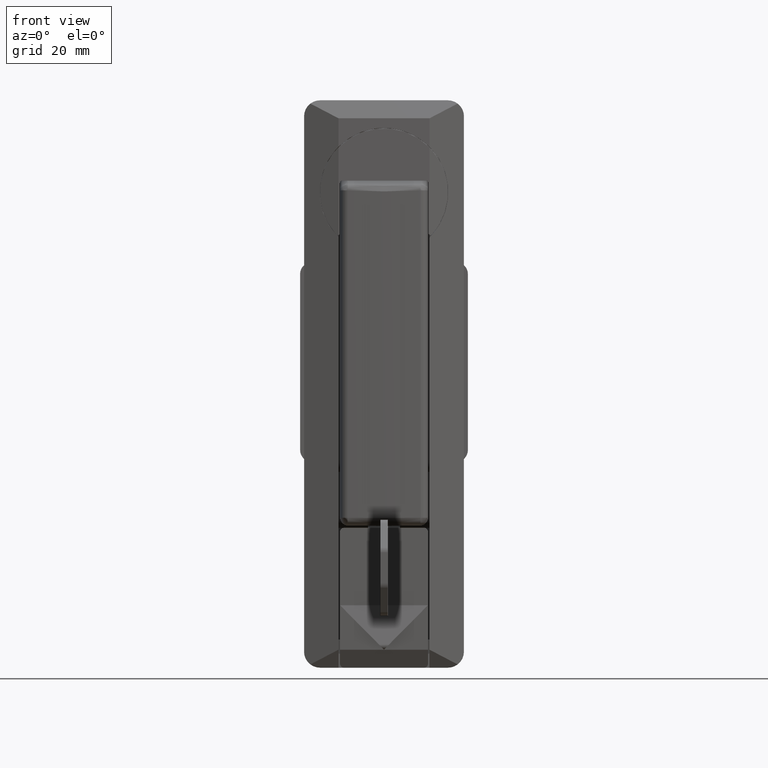
[diagram: clean part render]
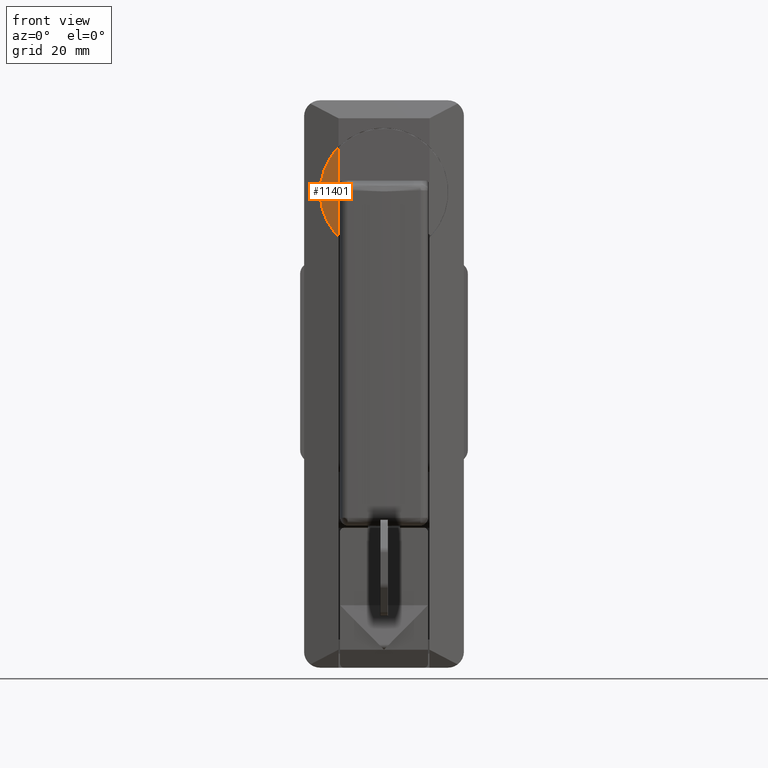
[diagram: same view with one face highlighted and labeled with its STEP entity id]
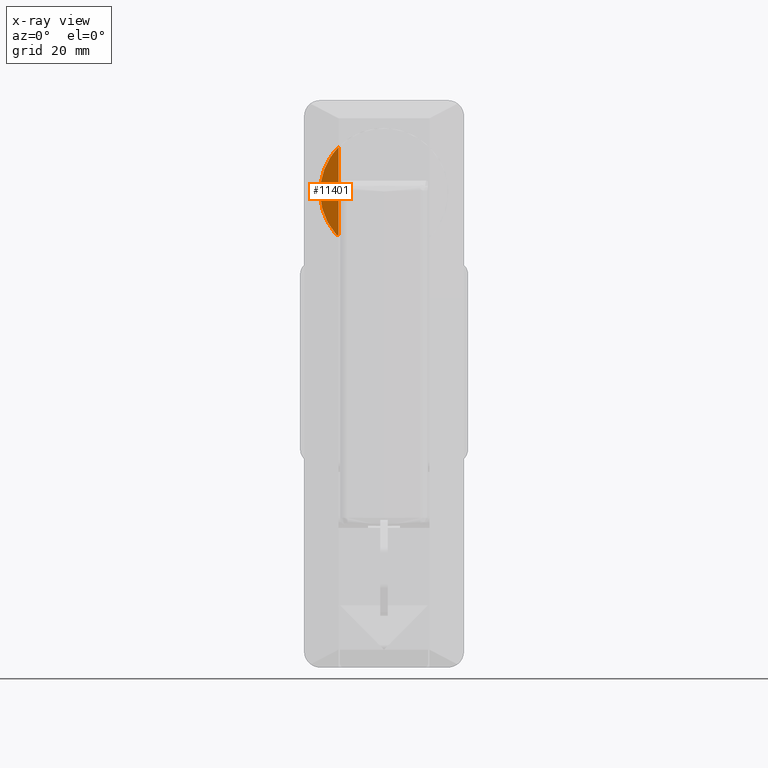
[diagram: x-ray of the same camera — body ghosted, the highlighted face saturated]
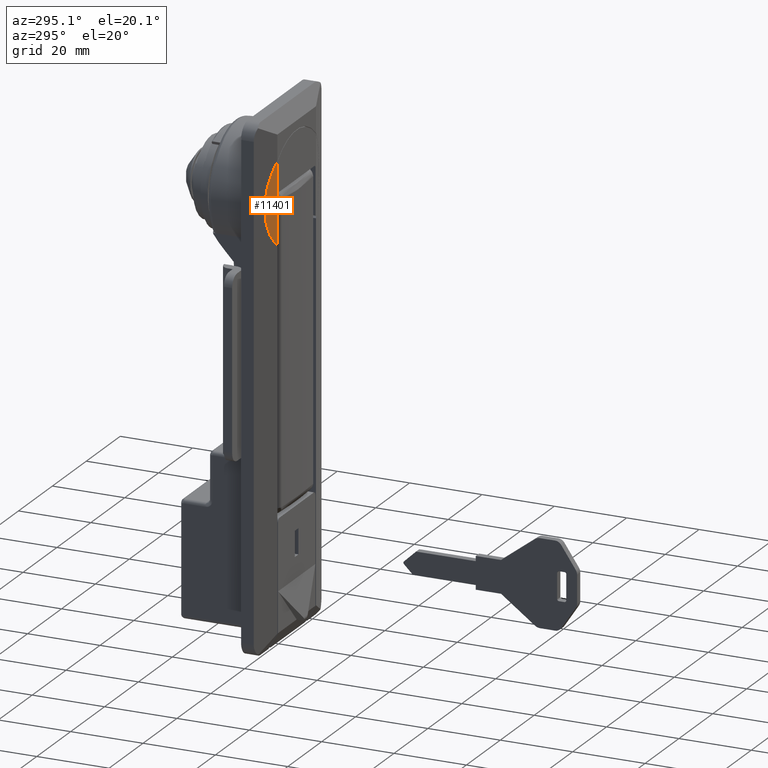
[diagram: same view with one face highlighted and labeled with its STEP entity id]
A machine part, front view. The second image highlights one B-rep face of the part: STEP entity #11401.
The next image is the same camera in x-ray: the body ghosted, the highlighted face saturated — about 0% of this face is hidden behind the body in this view.
A second angle (auxiliary view) of the same face is appended — the face is thin or edge-on in the first view.
In plain terms, the highlighted face is a freeform B-spline surface patch.
Its self-contained STEP definition (entity closure, byte-faithful):
#11357=CARTESIAN_POINT('',(-3.597363100796733,16.225070933259129,-11.879820812761800));
#11358=CARTESIAN_POINT('',(-5.066728752041638,11.170453092976810,-11.879820812761800));
#11359=CARTESIAN_POINT('',(-3.597363100796733,16.225070933259129,12.326019418003719));
#11360=CARTESIAN_POINT('',(-5.066728752041638,11.170453092976810,12.326019418003719));
#11361=B_SPLINE_SURFACE_WITH_KNOTS('',1,1,((#11357,#11359),(#11358,#11360)),.UNSPECIFIED.,.F.,.F.,.U.,(2,2),(2,2),(0.0,5.263857609050483),(0.0,24.205840230765521),.UNSPECIFIED.);
#11362=CARTESIAN_POINT('',(-5.0,11.400000000000000,-10.738821756348321));
#11363=VERTEX_POINT('',#11362);
#11364=CARTESIAN_POINT('',(-4.833083270817700,11.974193548387120,-10.612195289654460));
#11365=VERTEX_POINT('',#11364);
#11366=CARTESIAN_POINT('',(-5.000000000000002,11.400000000000000,-10.738821756348340));
#11367=CARTESIAN_POINT('',(-4.903162486935313,11.733121044942527,-10.884207699589474));
#11368=CARTESIAN_POINT('',(-4.833083270817695,11.974193548387120,-10.612195289654441));
#11376=(BOUNDED_CURVE()B_SPLINE_CURVE(2,(#11366,#11367,#11368),.UNSPECIFIED.,.F.,.U.)CURVE()GEOMETRIC_REPRESENTATION_ITEM()QUASI_UNIFORM_CURVE()RATIONAL_B_SPLINE_CURVE((1.0,0.808868040488202,1.0))REPRESENTATION_ITEM(''));
#11377=EDGE_CURVE('',#11363,#11365,#11376,.T.);
#11378=ORIENTED_EDGE('',*,*,#11377,.F.);
#11379=CARTESIAN_POINT('',(-5.0,11.400000000000000,11.226753760548940));
#11380=VERTEX_POINT('',#11379);
#11381=CARTESIAN_POINT('',(-5.0,11.400000000000000,-10.738821756348321));
#11382=CARTESIAN_POINT('',(-5.0,11.400000000000000,11.226753760548940));
#11383=QUASI_UNIFORM_CURVE('',1,(#11381,#11382),.UNSPECIFIED.,.F.,.U.);
#11384=EDGE_CURVE('',#11363,#11380,#11383,.T.);
#11385=ORIENTED_EDGE('',*,*,#11384,.T.);
#11386=CARTESIAN_POINT('',(-4.833083270817698,11.974193548387129,-10.612195289654441));
#11387=CARTESIAN_POINT('',(-1.950765296069434,21.889367381520852,0.575519156157731));
#11388=CARTESIAN_POINT('',(-5.000000000000005,11.400000000000009,11.226753760548929));
#11396=(BOUNDED_CURVE()B_SPLINE_CURVE(2,(#11386,#11387,#11388),.UNSPECIFIED.,.F.,.U.)CURVE()GEOMETRIC_REPRESENTATION_ITEM()QUASI_UNIFORM_CURVE()RATIONAL_B_SPLINE_CURVE((1.0,0.730695974787006,1.0))REPRESENTATION_ITEM(''));
#11397=EDGE_CURVE('',#11365,#11380,#11396,.T.);
#11398=ORIENTED_EDGE('',*,*,#11397,.F.);
#11399=EDGE_LOOP('',(#11378,#11385,#11398));
#11400=FACE_OUTER_BOUND('',#11399,.T.);
#11401=ADVANCED_FACE('',(#11400),#11361,.T.);